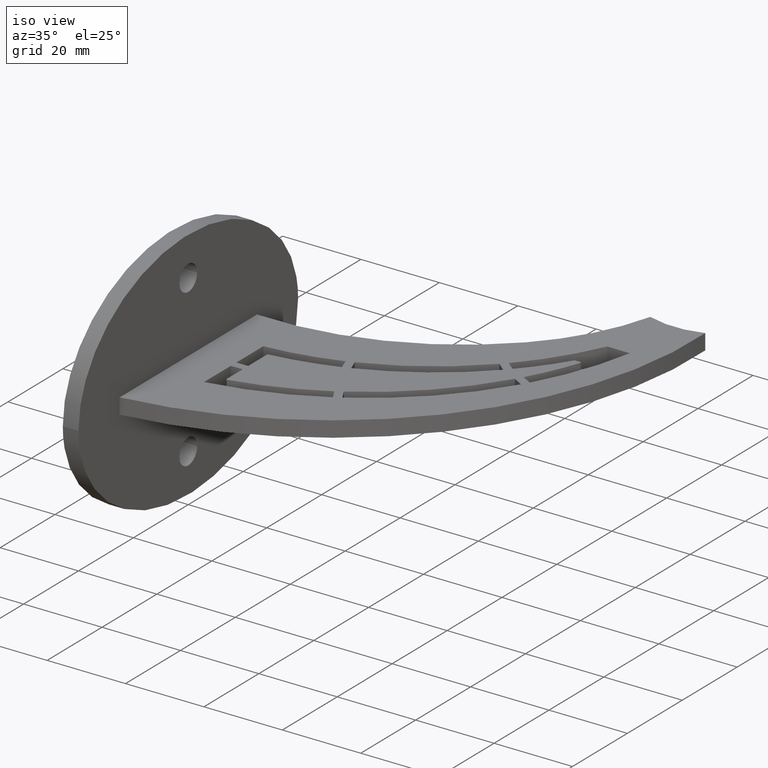
[diagram: clean part render]
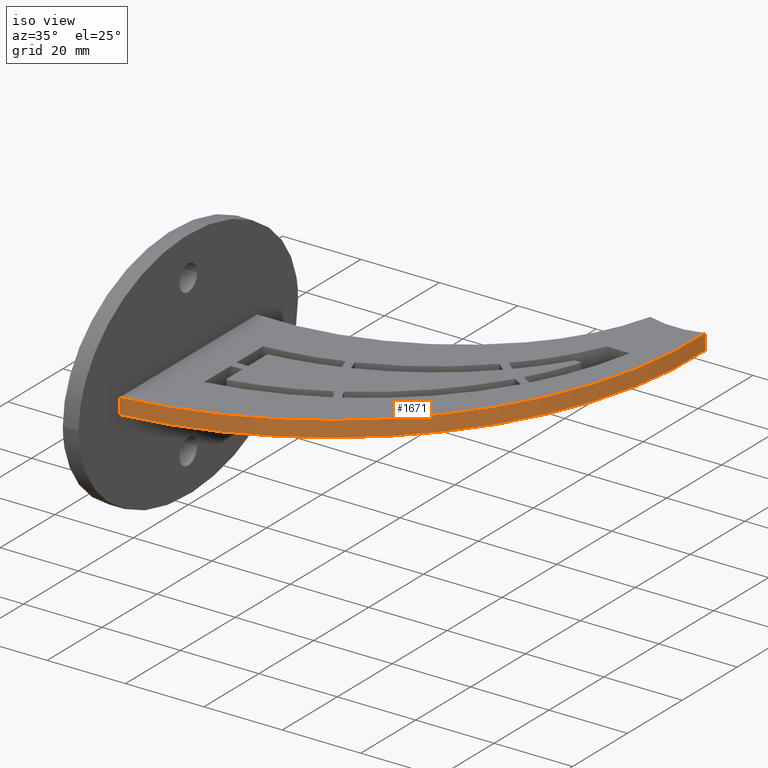
[diagram: same view with one face highlighted and labeled with its STEP entity id]
A machine part, iso view. The second image highlights one B-rep face of the part: STEP entity #1671.
In plain terms, the highlighted cylindrical surface (partial cylindrical patch) has radius 92 mm, axis along (-0, -0, -1).
Its self-contained STEP definition (entity closure, byte-faithful):
#559 = CARTESIAN_POINT ( 'NONE',  ( 81.99999999999997158, 71.18900302333739205, 2.000000000000000000 ) ) ;
#646 = DIRECTION ( 'NONE',  ( -0.000000000000000000, -0.000000000000000000, -1.000000000000000000 ) ) ;
#750 = EDGE_CURVE ( 'NONE', #13177, #1127, #4645, .T. ) ;
#1004 = CARTESIAN_POINT ( 'NONE',  ( -9.878794471127335441, 66.46807869304582539, -2.000000000000000000 ) ) ;
#1127 = VERTEX_POINT ( 'NONE', #5790 ) ;
#1671 = ADVANCED_FACE ( 'NONE', ( #7072 ), #9154, .T. ) ;
#2033 = CARTESIAN_POINT ( 'NONE',  ( 81.99999999999997158, 71.18900302333739205, 2.000000000000000000 ) ) ;
#2476 = CARTESIAN_POINT ( 'NONE',  ( 81.99999999999997158, 71.18900302333739205, -2.000000000000000000 ) ) ;
#2893 = DIRECTION ( 'NONE',  ( 1.000000000000000000, 0.000000000000000000, 0.000000000000000000 ) ) ;
#4368 = EDGE_CURVE ( 'NONE', #1127, #8500, #12404, .T. ) ;
#4394 = LINE ( 'NONE', #559, #10245 ) ;
#4645 = LINE ( 'NONE', #6159, #7082 ) ;
#4844 = CIRCLE ( 'NONE', #7586, 91.99999999999938893 ) ;
#5790 = CARTESIAN_POINT ( 'NONE',  ( -1.998401444325186453E-12, -24.99999999999879918, -2.000000000000000000 ) ) ;
#5971 = EDGE_CURVE ( 'NONE', #10538, #8500, #4394, .T. ) ;
#5993 = DIRECTION ( 'NONE',  ( 1.000000000000000000, 0.000000000000000000, 0.000000000000000000 ) ) ;
#6159 = CARTESIAN_POINT ( 'NONE',  ( 2.220446049250313081E-13, -24.99999999999879918, 2.000000000000000000 ) ) ;
#6741 = DIRECTION ( 'NONE',  ( -0.000000000000000000, -0.000000000000000000, -1.000000000000000000 ) ) ;
#7072 = FACE_OUTER_BOUND ( 'NONE', #11686, .T. ) ;
#7082 = VECTOR ( 'NONE', #12272, 1000.000000000000000 ) ;
#7527 = ORIENTED_EDGE ( 'NONE', *, *, #750, .T. ) ;
#7586 = AXIS2_PLACEMENT_3D ( 'NONE', #10138, #11140, #5993 ) ;
#7902 = AXIS2_PLACEMENT_3D ( 'NONE', #10942, #646, #10055 ) ;
#8100 = DIRECTION ( 'NONE',  ( -0.000000000000000000, 0.000000000000000000, 1.000000000000000000 ) ) ;
#8500 = VERTEX_POINT ( 'NONE', #2476 ) ;
#8735 = ORIENTED_EDGE ( 'NONE', *, *, #9247, .F. ) ;
#9154 = CYLINDRICAL_SURFACE ( 'NONE', #7902, 91.99999999999941735 ) ;
#9247 = EDGE_CURVE ( 'NONE', #13177, #10538, #4844, .T. ) ;
#10055 = DIRECTION ( 'NONE',  ( -1.000000000000000000, 0.000000000000000000, 0.000000000000000000 ) ) ;
#10138 = CARTESIAN_POINT ( 'NONE',  ( -9.878794471127335441, 66.46807869304582539, 2.000000000000000000 ) ) ;
#10245 = VECTOR ( 'NONE', #6741, 1000.000000000000000 ) ;
#10538 = VERTEX_POINT ( 'NONE', #2033 ) ;
#10942 = CARTESIAN_POINT ( 'NONE',  ( -9.878794471127335441, 66.46807869304582539, 2.000000000000000000 ) ) ;
#11140 = DIRECTION ( 'NONE',  ( -0.000000000000000000, 0.000000000000000000, 1.000000000000000000 ) ) ;
#11686 = EDGE_LOOP ( 'NONE', ( #13159, #11874, #8735, #7527 ) ) ;
#11874 = ORIENTED_EDGE ( 'NONE', *, *, #5971, .F. ) ;
#12272 = DIRECTION ( 'NONE',  ( -0.000000000000000000, -0.000000000000000000, -1.000000000000000000 ) ) ;
#12404 = CIRCLE ( 'NONE', #13169, 91.99999999999938893 ) ;
#12954 = CARTESIAN_POINT ( 'NONE',  ( -1.998139615876600116E-12, -24.99999999999961986, 2.000000000000000000 ) ) ;
#13159 = ORIENTED_EDGE ( 'NONE', *, *, #4368, .T. ) ;
#13169 = AXIS2_PLACEMENT_3D ( 'NONE', #1004, #8100, #2893 ) ;
#13177 = VERTEX_POINT ( 'NONE', #12954 ) ;